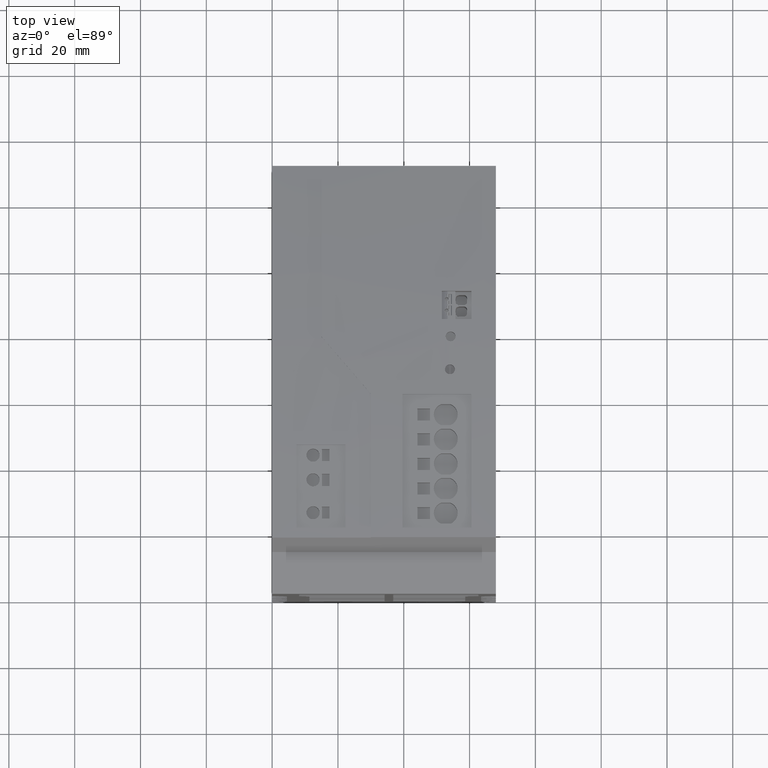
[diagram: clean part render]
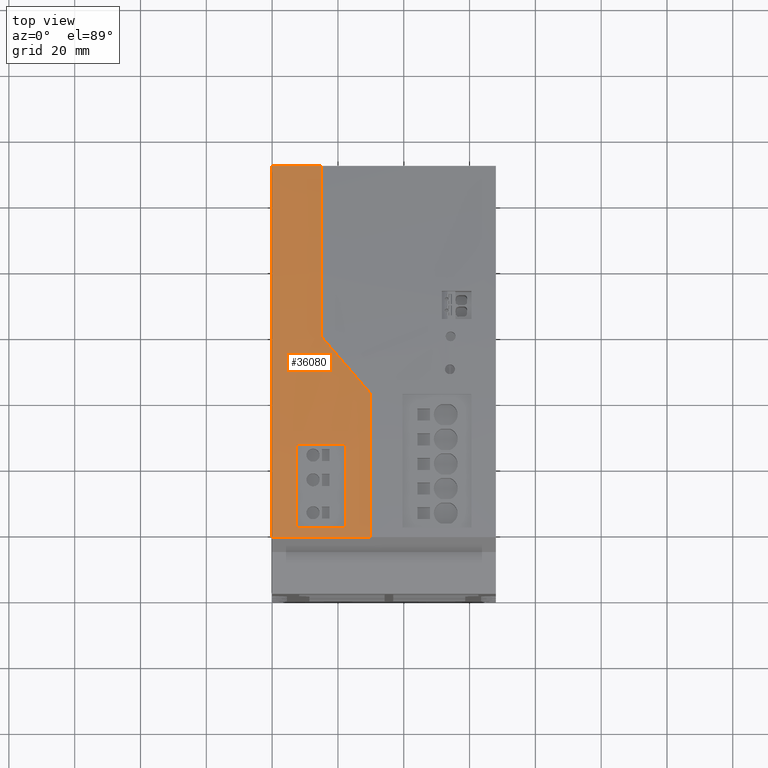
[diagram: same view with one face highlighted and labeled with its STEP entity id]
A machine part, top view. The second image highlights one B-rep face of the part: STEP entity #36080.
In plain terms, the highlighted cylindrical surface (partial cylindrical patch) has radius 659.9 mm, axis along (1, 0, 0).
Its self-contained STEP definition (entity closure, byte-faithful):
#920=CARTESIAN_POINT('',(149.998374592783,130.,4.5));
#930=VERTEX_POINT('',#920);
#960=CARTESIAN_POINT('',(-500.154692,16.9999999999999,4.5));
#970=DIRECTION('',(0.,0.,-1.));
#980=DIRECTION('',(-1.,0.,0.));
#990=AXIS2_PLACEMENT_3D('',#960,#970,#980);
#1000=CIRCLE('',#990,659.9);
#1010=CARTESIAN_POINT('',(159.745291614598,16.8529440451183,4.5));
#1020=VERTEX_POINT('',#1010);
#1030=EDGE_CURVE('',#930,#1020,#1000,.T.);
#35230=CARTESIAN_POINT('',(-500.154692,16.9999999999999,4.5));
#35240=DIRECTION('',(0.,0.,-1.));
#35250=DIRECTION('',(-1.,0.,0.));
#35260=AXIS2_PLACEMENT_3D('',#35230,#35240,#35250);
#35270=CYLINDRICAL_SURFACE('',#35260,659.9);
#35280=ORIENTED_EDGE('',*,*,#1030,.T.);
#35290=CARTESIAN_POINT('',(149.998374592783,130.,4.5));
#35300=DIRECTION('',(0.,0.,-1.));
#35310=VECTOR('',#35300,1.);
#35320=LINE('',#35290,#35310);
#35330=CARTESIAN_POINT('',(149.998374592783,130.,-10.5));
#35340=VERTEX_POINT('',#35330);
#35350=EDGE_CURVE('',#930,#35340,#35320,.T.);
#35360=ORIENTED_EDGE('',*,*,#35350,.F.);
#35370=CARTESIAN_POINT('',(-500.154692,16.9999999999999,-10.5));
#35380=DIRECTION('',(0.,0.,-1.));
#35390=DIRECTION('',(-1.,0.,0.));
#35400=AXIS2_PLACEMENT_3D('',#35370,#35380,#35390);
#35410=CIRCLE('',#35400,659.9);
#35420=CARTESIAN_POINT('',(156.922625126798,77.9705610721244,-10.5));
#35430=VERTEX_POINT('',#35420);
#35440=EDGE_CURVE('',#35340,#35430,#35410,.T.);
#35450=ORIENTED_EDGE('',*,*,#35440,.F.);
#35460=CARTESIAN_POINT('',(-500.154692,17.,-45.6414054304005));
#35470=DIRECTION('',(0.0200042102666528,-0.652297244206266,
0.757699238994285));
#35480=DIRECTION('',(-0.0232256881480475,0.757343187849847,
0.652603909908209));
#35490=AXIS2_PLACEMENT_3D('',#35460,#35470,#35480);
#35500=ELLIPSE('',#35490,870.926042998147,659.9);
#35510=CARTESIAN_POINT('',(158.30411223061,60.5891400602894,-25.5));
#35520=VERTEX_POINT('',#35510);
#35530=EDGE_CURVE('',#35520,#35430,#35500,.T.);
#35540=ORIENTED_EDGE('',*,*,#35530,.T.);
#35550=CARTESIAN_POINT('',(-500.154692,16.9999999999999,-25.5));
#35560=DIRECTION('',(0.,0.,-1.));
#35570=DIRECTION('',(-1.,0.,0.));
#35580=AXIS2_PLACEMENT_3D('',#35550,#35560,#35570);
#35590=CIRCLE('',#35580,659.9);
#35600=CARTESIAN_POINT('',(159.745291614598,16.8529440451183,-25.5));
#35610=VERTEX_POINT('',#35600);
#35620=EDGE_CURVE('',#35520,#35610,#35590,.T.);
#35630=ORIENTED_EDGE('',*,*,#35620,.F.);
#35640=CARTESIAN_POINT('',(159.745291614598,16.8529440451183,4.5));
#35650=DIRECTION('',(0.,0.,-1.));
#35660=VECTOR('',#35650,1.);
#35670=LINE('',#35640,#35660);
#35680=EDGE_CURVE('',#1020,#35610,#35670,.T.);
#35690=ORIENTED_EDGE('',*,*,#35680,.T.);
#35700=EDGE_LOOP('',(#35690,#35630,#35540,#35450,#35360,#35280));
#35710=FACE_OUTER_BOUND('',#35700,.T.);
#35720=CARTESIAN_POINT('',(-500.154692,16.9999999999999,
-17.7464447356338));
#35730=DIRECTION('',(0.,0.,-1.));
#35740=DIRECTION('',(-1.,0.,0.));
#35750=AXIS2_PLACEMENT_3D('',#35720,#35730,#35740);
#35760=CIRCLE('',#35750,659.9);
#35770=CARTESIAN_POINT('',(159.148104960955,45.0683437249542,
-17.7464447356338));
#35780=VERTEX_POINT('',#35770);
#35790=CARTESIAN_POINT('',(159.739078706224,19.8672954367866,
-17.7464447359302));
#35800=VERTEX_POINT('',#35790);
#35810=EDGE_CURVE('',#35780,#35800,#35760,.T.);
#35820=ORIENTED_EDGE('',*,*,#35810,.T.);
#35830=CARTESIAN_POINT('',(159.148104960955,45.0683437249542,4.5));
#35840=DIRECTION('',(0.,0.,-1.));
#35850=VECTOR('',#35840,1.);
#35860=LINE('',#35830,#35850);
#35870=CARTESIAN_POINT('',(159.148104960955,45.0683437249542,
-2.95355339029665));
#35880=VERTEX_POINT('',#35870);
#35890=EDGE_CURVE('',#35880,#35780,#35860,.T.);
#35900=ORIENTED_EDGE('',*,*,#35890,.T.);
#35910=CARTESIAN_POINT('',(-500.154692,16.9999999999999,
-2.95355339029665));
#35920=DIRECTION('',(0.,0.,-1.));
#35930=DIRECTION('',(-1.,0.,0.));
#35940=AXIS2_PLACEMENT_3D('',#35910,#35920,#35930);
#35950=CIRCLE('',#35940,659.9);
#35960=CARTESIAN_POINT('',(159.739078706224,19.8672954367866,
-2.95355339029665));
#35970=VERTEX_POINT('',#35960);
#35980=EDGE_CURVE('',#35880,#35970,#35950,.T.);
#35990=ORIENTED_EDGE('',*,*,#35980,.F.);
#36000=CARTESIAN_POINT('',(159.739078706224,19.8672954367866,4.5));
#36010=DIRECTION('',(0.,0.,-1.));
#36020=VECTOR('',#36010,1.);
#36030=LINE('',#36000,#36020);
#36040=EDGE_CURVE('',#35970,#35800,#36030,.T.);
#36050=ORIENTED_EDGE('',*,*,#36040,.F.);
#36060=EDGE_LOOP('',(#36050,#35990,#35900,#35820));
#36070=FACE_BOUND('',#36060,.T.);
#36080=ADVANCED_FACE('',(#35710,#36070),#35270,.T.);